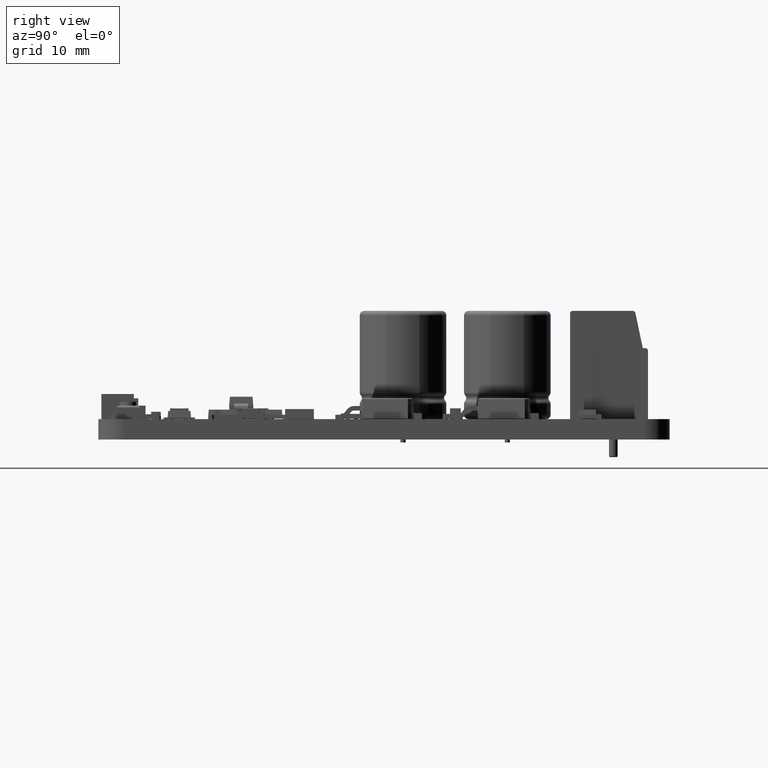
[diagram: clean part render]
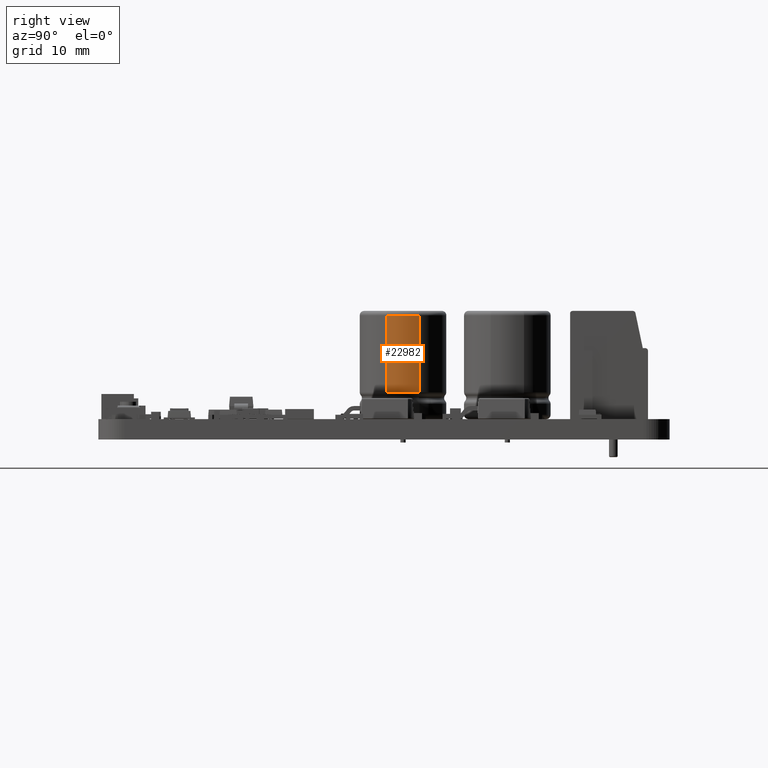
[diagram: same view with one face highlighted and labeled with its STEP entity id]
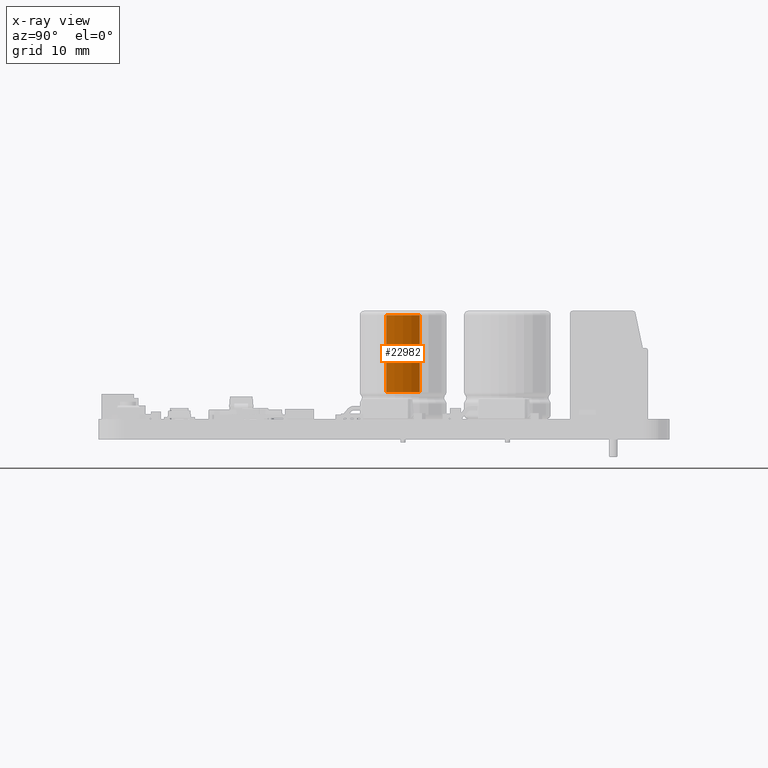
[diagram: x-ray of the same camera — body ghosted, the highlighted face saturated]
A machine part, right view. The second image highlights one B-rep face of the part: STEP entity #22982.
The next image is the same camera in x-ray: the body ghosted, the highlighted face saturated — about 0% of this face is hidden behind the body in this view.
In plain terms, the highlighted cylindrical surface (partial cylindrical patch) has radius 5.02 mm, axis along (0, -0, 1).
Its self-contained STEP definition (entity closure, byte-faithful):
#22952 = EDGE_CURVE('',#22953,#22955,#22957,.T.);
#22953 = VERTEX_POINT('',#22954);
#22954 = CARTESIAN_POINT('',(4.627875253207,3.094450529658,
    1.921070830473));
#22955 = VERTEX_POINT('',#22956);
#22956 = CARTESIAN_POINT('',(4.627875253207,3.094450529658,
    -1.921070830473));
#22957 = CIRCLE('',#22958,5.02);
#22958 = AXIS2_PLACEMENT_3D('',#22959,#22960,#22961);
#22959 = CARTESIAN_POINT('',(-1.E-02,3.094450529658,0.));
#22960 = DIRECTION('',(3.410870928541E-17,1.,-0.));
#22961 = DIRECTION('',(-1.,3.410870928541E-17,0.));
#22982 = ADVANCED_FACE('',(#22983),#23009,.T.);
#22983 = FACE_BOUND('',#22984,.T.);
#22984 = EDGE_LOOP('',(#22985,#22996,#23002,#23003));
#22985 = ORIENTED_EDGE('',*,*,#22986,.F.);
#22986 = EDGE_CURVE('',#22987,#22989,#22991,.T.);
#22987 = VERTEX_POINT('',#22988);
#22988 = CARTESIAN_POINT('',(4.627875253207,12.,1.921070830473));
#22989 = VERTEX_POINT('',#22990);
#22990 = CARTESIAN_POINT('',(4.627875253207,12.,-1.921070830473));
#22991 = CIRCLE('',#22992,5.02);
#22992 = AXIS2_PLACEMENT_3D('',#22993,#22994,#22995);
#22993 = CARTESIAN_POINT('',(-1.E-02,12.,0.));
#22994 = DIRECTION('',(3.410870928541E-17,1.,-0.));
#22995 = DIRECTION('',(-1.,3.410870928541E-17,0.));
#22996 = ORIENTED_EDGE('',*,*,#22997,.F.);
#22997 = EDGE_CURVE('',#22953,#22987,#22998,.T.);
#22998 = LINE('',#22999,#23000);
#22999 = CARTESIAN_POINT('',(4.627875253207,3.094450529658,
    1.921070830473));
#23000 = VECTOR('',#23001,1.);
#23001 = DIRECTION('',(2.596370896242E-18,1.,-1.305283794288E-17));
#23002 = ORIENTED_EDGE('',*,*,#22952,.T.);
#23003 = ORIENTED_EDGE('',*,*,#23004,.T.);
#23004 = EDGE_CURVE('',#22955,#22989,#23005,.T.);
#23005 = LINE('',#23006,#23007);
#23006 = CARTESIAN_POINT('',(4.627875253207,3.094450529658,
    -1.921070830473));
#23007 = VECTOR('',#23008,1.);
#23008 = DIRECTION('',(2.596370896242E-18,1.,1.305283794288E-17));
#23009 = CYLINDRICAL_SURFACE('',#23010,5.02);
#23010 = AXIS2_PLACEMENT_3D('',#23011,#23012,#23013);
#23011 = CARTESIAN_POINT('',(-1.E-02,12.21,0.));
#23012 = DIRECTION('',(3.410870928541E-17,1.,-0.));
#23013 = DIRECTION('',(-1.,3.410870928541E-17,0.));